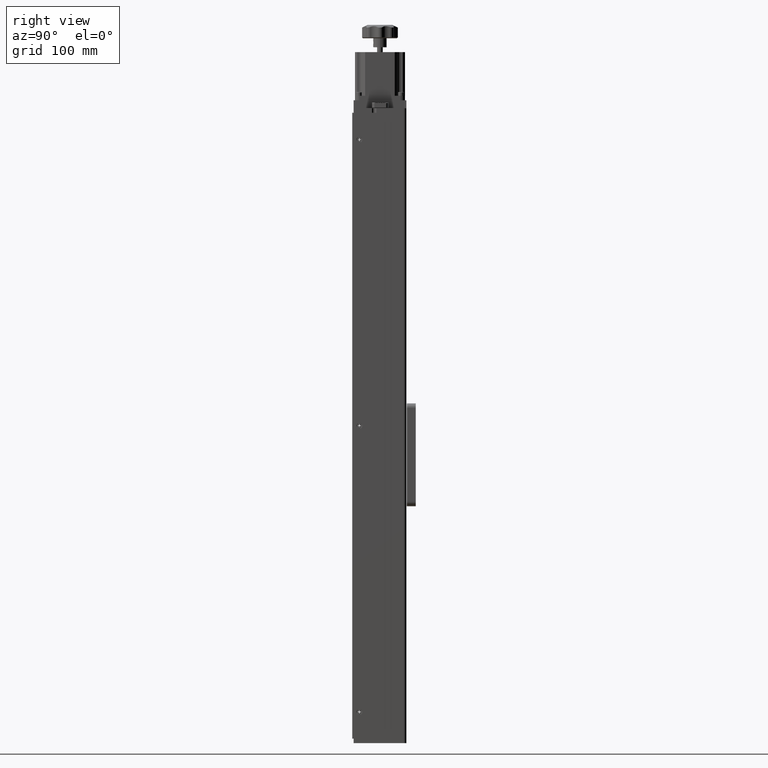
[diagram: clean part render]
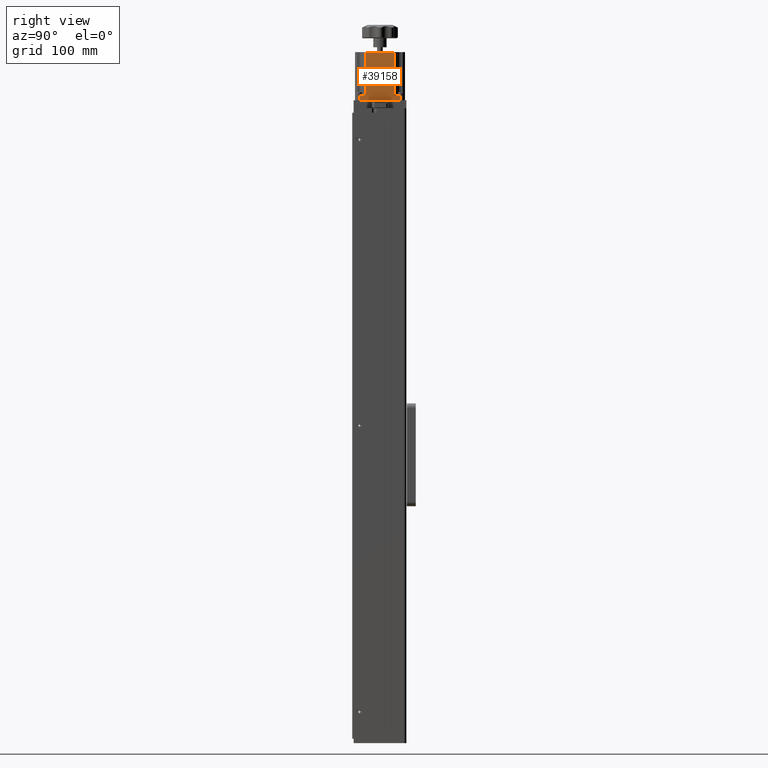
[diagram: same view with one face highlighted and labeled with its STEP entity id]
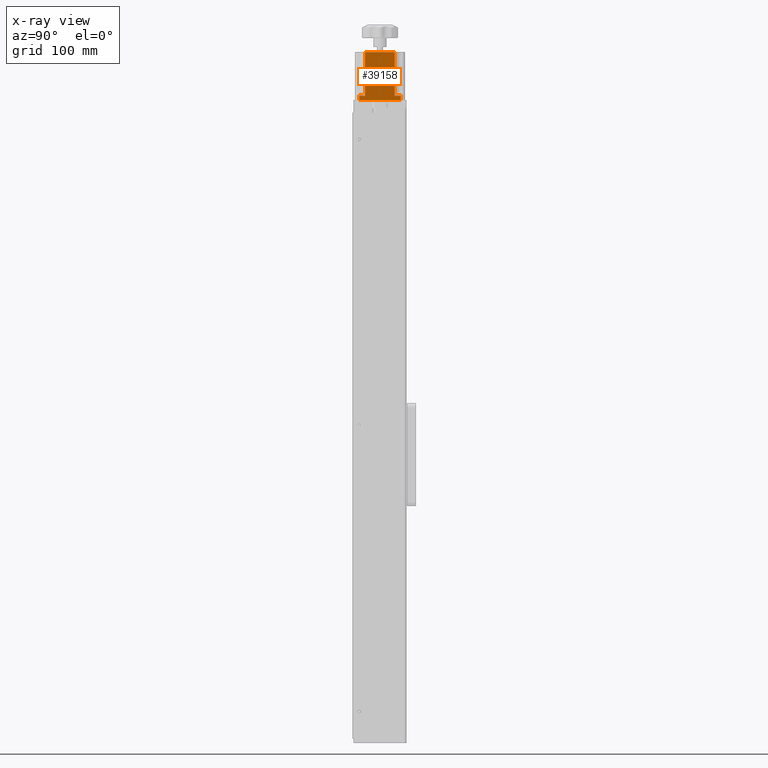
[diagram: x-ray of the same camera — body ghosted, the highlighted face saturated]
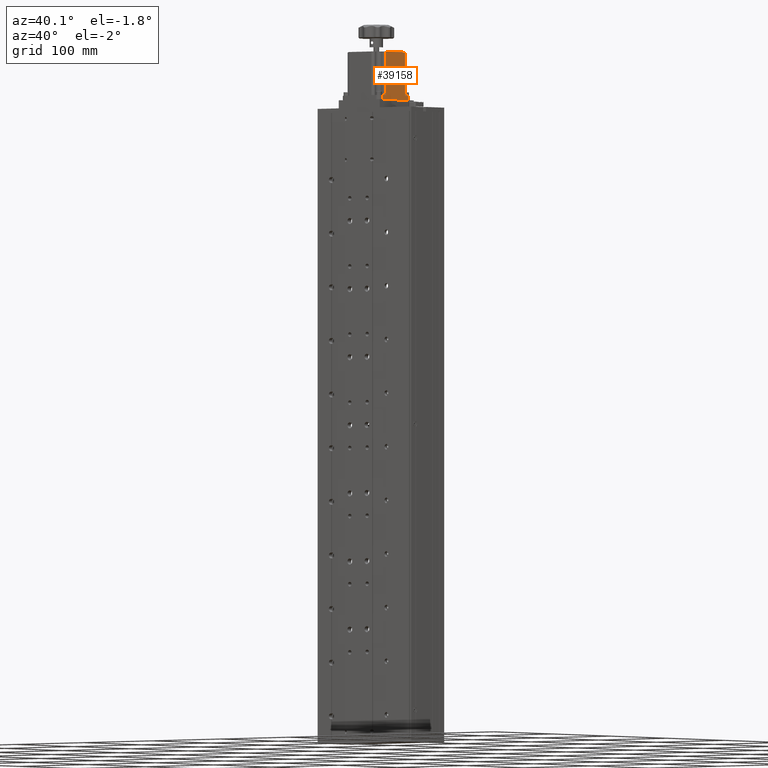
[diagram: same view with one face highlighted and labeled with its STEP entity id]
A machine part, right view. The second image highlights one B-rep face of the part: STEP entity #39158.
The next image is the same camera in x-ray: the body ghosted, the highlighted face saturated — about 0% of this face is hidden behind the body in this view.
A second angle (auxiliary view) of the same face is appended — the face is thin or edge-on in the first view.
In plain terms, the highlighted planar face has unit normal (-1, 0, 0).
Its self-contained STEP definition (entity closure, byte-faithful):
#434 = VERTEX_POINT ( 'NONE', #9610 ) ;
#490 = ORIENTED_EDGE ( 'NONE', *, *, #24262, .T. ) ;
#704 = LINE ( 'NONE', #41774, #35076 ) ;
#1626 = DIRECTION ( 'NONE',  ( 0.0000000000000000000, 0.0000000000000000000, -1.000000000000000000 ) ) ;
#3028 = VECTOR ( 'NONE', #1626, 1000.000000000000000 ) ;
#3121 = ORIENTED_EDGE ( 'NONE', *, *, #28989, .T. ) ;
#3227 = LINE ( 'NONE', #25388, #37601 ) ;
#3776 = ORIENTED_EDGE ( 'NONE', *, *, #25551, .T. ) ;
#4067 = VERTEX_POINT ( 'NONE', #40773 ) ;
#5904 = EDGE_CURVE ( 'NONE', #41185, #12197, #13577, .T. ) ;
#6053 = CARTESIAN_POINT ( 'NONE',  ( 17.38919164396007800, 48.58234937935200300, 369.0000000000000000 ) ) ;
#7249 = VERTEX_POINT ( 'NONE', #37132 ) ;
#8605 = ORIENTED_EDGE ( 'NONE', *, *, #14310, .T. ) ;
#8795 = LINE ( 'NONE', #6053, #33284 ) ;
#9174 = EDGE_CURVE ( 'NONE', #29701, #434, #704, .T. ) ;
#9568 = DIRECTION ( 'NONE',  ( -2.577303450022698500E-017, -1.000000000000000000, 0.0000000000000000000 ) ) ;
#9610 = CARTESIAN_POINT ( 'NONE',  ( 17.38919164396007800, 4.012349379351971600, 417.8000000000000100 ) ) ;
#9833 = CARTESIAN_POINT ( 'NONE',  ( 17.38919164396007800, 48.58234937935200300, 364.0000000000000000 ) ) ;
#11657 = CARTESIAN_POINT ( 'NONE',  ( 17.38919164396007800, 4.012349379351985800, 369.0000000000000000 ) ) ;
#11858 = LINE ( 'NONE', #11657, #3028 ) ;
#11979 = CARTESIAN_POINT ( 'NONE',  ( 17.38919164396007800, -2.417650620648022800, 364.0000000000000000 ) ) ;
#12197 = VERTEX_POINT ( 'NONE', #39056 ) ;
#12450 = EDGE_LOOP ( 'NONE', ( #18904, #3121, #36767, #8605, #25809, #3776, #36426, #490 ) ) ;
#12681 = VERTEX_POINT ( 'NONE', #28943 ) ;
#13043 = CARTESIAN_POINT ( 'NONE',  ( 17.38919164396007800, 43.58234937935198900, 369.0000000000000000 ) ) ;
#13577 = LINE ( 'NONE', #26197, #39136 ) ;
#14310 = EDGE_CURVE ( 'NONE', #12681, #38058, #29352, .T. ) ;
#14516 = DIRECTION ( 'NONE',  ( -0.0000000000000000000, 0.0000000000000000000, 1.000000000000000000 ) ) ;
#15266 = DIRECTION ( 'NONE',  ( -2.577303450022693500E-017, -1.000000000000000000, 0.0000000000000000000 ) ) ;
#15875 = CARTESIAN_POINT ( 'NONE',  ( 17.38919164396007800, -2.417650620648022800, 364.0000000000000000 ) ) ;
#15964 = DIRECTION ( 'NONE',  ( -2.577303450022698500E-017, -1.000000000000000000, 0.0000000000000000000 ) ) ;
#16821 = EDGE_CURVE ( 'NONE', #7249, #38058, #39826, .T. ) ;
#18904 = ORIENTED_EDGE ( 'NONE', *, *, #9174, .T. ) ;
#19373 = CARTESIAN_POINT ( 'NONE',  ( 17.38919164396007800, 48.58234937935200300, 364.0000000000000000 ) ) ;
#22555 = VECTOR ( 'NONE', #35313, 1000.000000000000000 ) ;
#22721 = DIRECTION ( 'NONE',  ( 2.577303450022698500E-017, 1.000000000000000000, 0.0000000000000000000 ) ) ;
#23205 = DIRECTION ( 'NONE',  ( -2.577303450022693500E-017, -1.000000000000000000, 0.0000000000000000000 ) ) ;
#23823 = AXIS2_PLACEMENT_3D ( 'NONE', #19373, #42701, #22721 ) ;
#24262 = EDGE_CURVE ( 'NONE', #12197, #29701, #32551, .T. ) ;
#25388 = CARTESIAN_POINT ( 'NONE',  ( 17.38919164396007800, 43.58234937935198900, 364.0000000000000000 ) ) ;
#25551 = EDGE_CURVE ( 'NONE', #7249, #41185, #3227, .T. ) ;
#25669 = PLANE ( 'NONE',  #23823 ) ;
#25809 = ORIENTED_EDGE ( 'NONE', *, *, #16821, .F. ) ;
#26197 = CARTESIAN_POINT ( 'NONE',  ( 17.38919164396007800, 48.58234937935200300, 369.0000000000000000 ) ) ;
#26483 = CARTESIAN_POINT ( 'NONE',  ( 17.38919164396007100, 37.15234937935198200, 417.8000000000000100 ) ) ;
#28943 = CARTESIAN_POINT ( 'NONE',  ( 17.38919164396007800, -2.417650620648022800, 369.0000000000000000 ) ) ;
#28989 = EDGE_CURVE ( 'NONE', #434, #4067, #11858, .T. ) ;
#29352 = LINE ( 'NONE', #11979, #22555 ) ;
#29701 = VERTEX_POINT ( 'NONE', #26483 ) ;
#30973 = VECTOR ( 'NONE', #23205, 1000.000000000000000 ) ;
#31501 = VECTOR ( 'NONE', #14516, 1000.000000000000000 ) ;
#32551 = LINE ( 'NONE', #41049, #31501 ) ;
#33284 = VECTOR ( 'NONE', #15964, 1000.000000000000000 ) ;
#34660 = EDGE_CURVE ( 'NONE', #4067, #12681, #8795, .T. ) ;
#35076 = VECTOR ( 'NONE', #15266, 1000.000000000000000 ) ;
#35313 = DIRECTION ( 'NONE',  ( 0.0000000000000000000, -0.0000000000000000000, -1.000000000000000000 ) ) ;
#36426 = ORIENTED_EDGE ( 'NONE', *, *, #5904, .T. ) ;
#36767 = ORIENTED_EDGE ( 'NONE', *, *, #34660, .T. ) ;
#37132 = CARTESIAN_POINT ( 'NONE',  ( 17.38919164396007800, 43.58234937935198900, 364.0000000000000000 ) ) ;
#37601 = VECTOR ( 'NONE', #38785, 1000.000000000000000 ) ;
#38058 = VERTEX_POINT ( 'NONE', #15875 ) ;
#38785 = DIRECTION ( 'NONE',  ( -0.0000000000000000000, 0.0000000000000000000, 1.000000000000000000 ) ) ;
#39056 = CARTESIAN_POINT ( 'NONE',  ( 17.38919164396007100, 37.15234937935198200, 369.0000000000000000 ) ) ;
#39136 = VECTOR ( 'NONE', #9568, 1000.000000000000000 ) ;
#39158 = ADVANCED_FACE ( 'NONE', ( #42305 ), #25669, .F. ) ;
#39826 = LINE ( 'NONE', #9833, #30973 ) ;
#40773 = CARTESIAN_POINT ( 'NONE',  ( 17.38919164396007800, 4.012349379351985800, 369.0000000000000000 ) ) ;
#41049 = CARTESIAN_POINT ( 'NONE',  ( 17.38919164396007100, 37.15234937935198200, 364.0000000000000000 ) ) ;
#41185 = VERTEX_POINT ( 'NONE', #13043 ) ;
#41774 = CARTESIAN_POINT ( 'NONE',  ( 17.38919164396007800, 48.58234937935200300, 417.8000000000000100 ) ) ;
#42305 = FACE_OUTER_BOUND ( 'NONE', #12450, .T. ) ;
#42701 = DIRECTION ( 'NONE',  ( -1.000000000000000000, 2.577303450022698500E-017, 0.0000000000000000000 ) ) ;